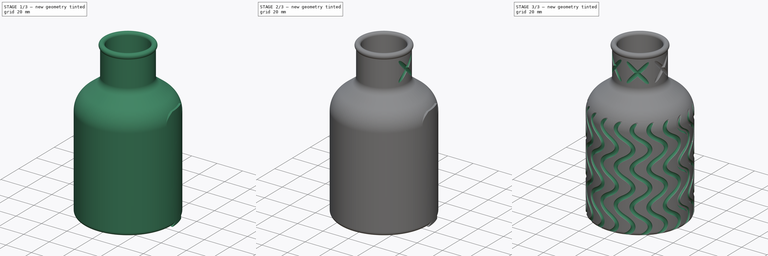
[diagram: build sequence overview — one tinted view per stage of 3, left to right]
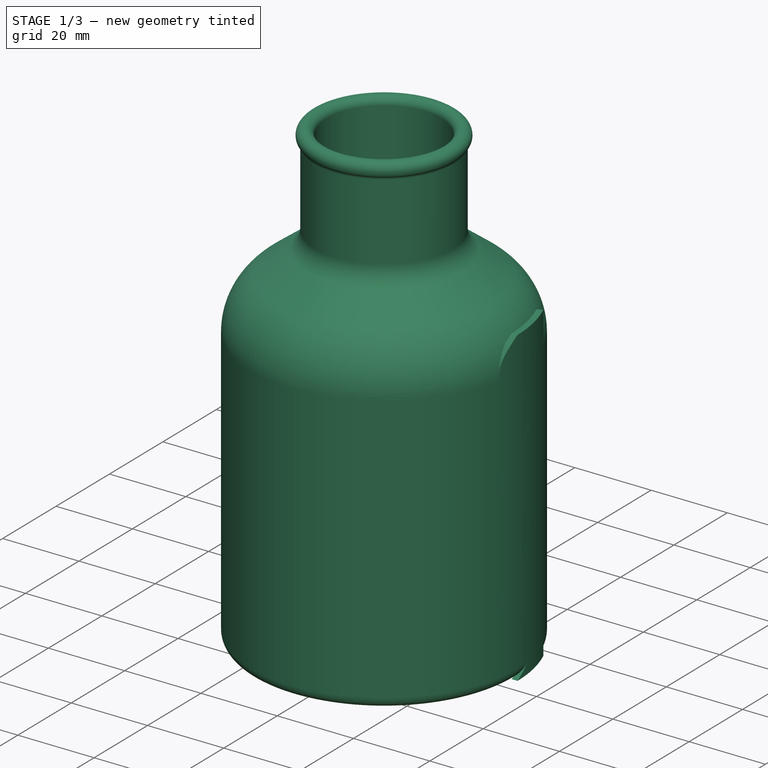
[diagram: stage 1 of 3 — iso view after this stage's code; geometry added in this stage tinted green]
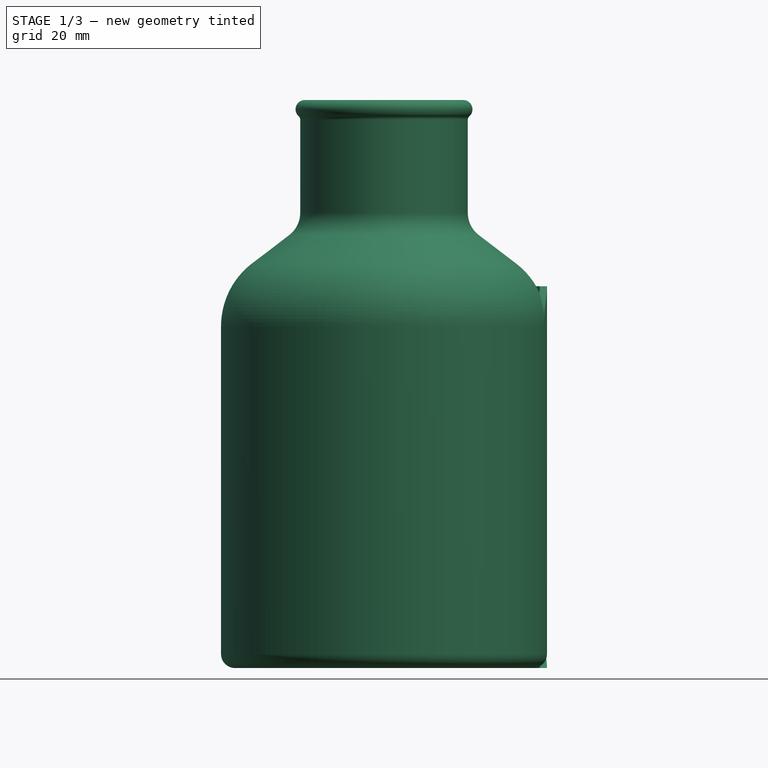
[diagram: stage 1 of 3 — front view after this stage's code; geometry added in this stage tinted green]
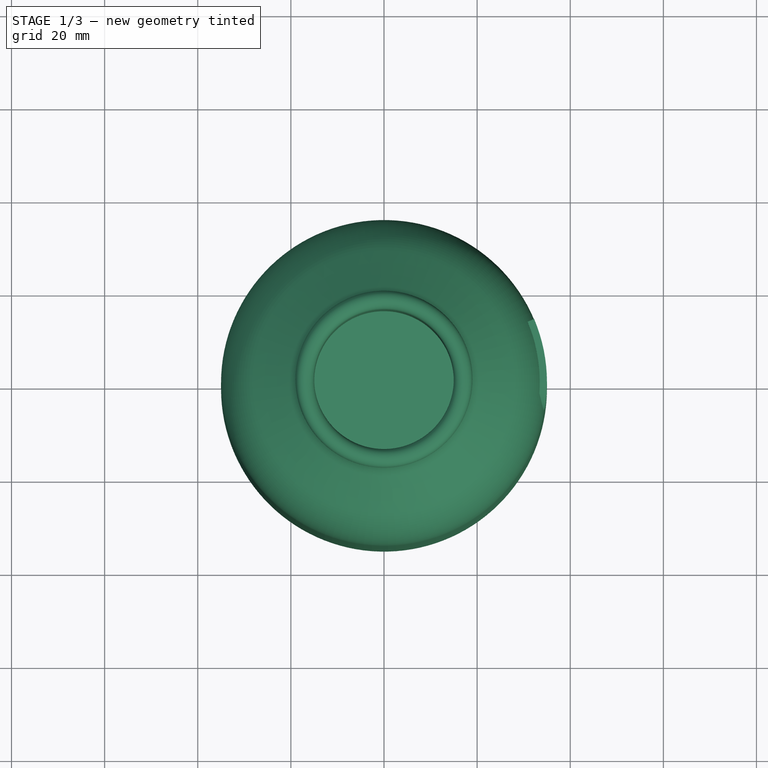
[diagram: stage 1 of 3 — top view after this stage's code; geometry added in this stage tinted green]
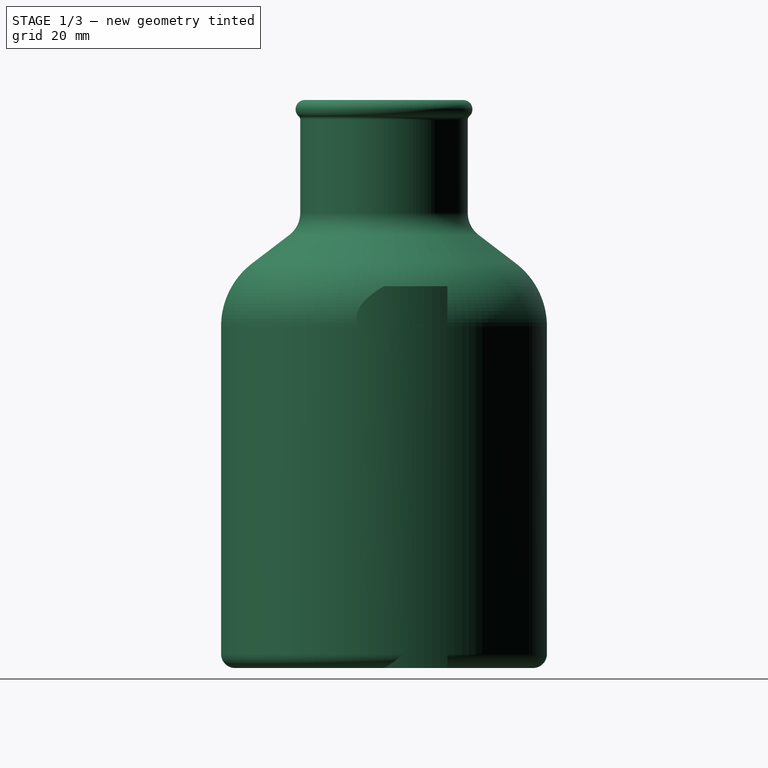
[diagram: stage 1 of 3 — right view after this stage's code; geometry added in this stage tinted green]
FCSTD DOCUMENT  (FreeCAD 1.0R39319 (Git))
Label: vase3
License: All rights reserved
LicenseURL: https://en.wikipedia.org/wiki/All_rights_reserved
objects: Sketcher::SketchObject×6, PartDesign::Pocket×3, PartDesign::PolarPattern×2, PartDesign::Body×2, PartDesign::Revolution×1, PartDesign::Pad×1, PartDesign::SubShapeBinder×1, PartDesign::SubtractivePipe×1
note: 37 computed .brp shape members not serialized (recipe doc carries the construction recipe); baked Part::Feature solids carry a one-line shape summary decoded from their .brp

FEATURE [Sketcher::SketchObject] Sketch001
  ArcFitTolerance = 1e-06
  AttachmentSupport = -> [XZ_Plane]
  FullyConstrained = true
  MakeInternals = false
  MapMode = 5
  Placement = pos=(0,0,0) rot=(1,0,0;1.5708rad)
  sketch-geometry (18):
    g0: LineSegment StartX=0 StartY=0 StartZ=0 EndX=32 EndY=0 EndZ=0
    g1: ArcOfCircle CenterX=32 CenterY=3 CenterZ=0 NormalX=0 NormalY=0 NormalZ=1 AngleXU=0 Radius=3 StartAngle=4.71239 EndAngle=6.28319
    g2: LineSegment StartX=35 StartY=3 StartZ=0 EndX=35 EndY=73.4123 EndZ=0
    g3: ArcOfCircle CenterX=18 CenterY=73.4123 CenterZ=0 NormalX=0 NormalY=0 NormalZ=1 AngleXU=0 Radius=17 StartAngle=0 EndAngle=0.91909
    g4: ArcOfCircle CenterX=24 CenterY=97.7639 CenterZ=0 NormalX=0 NormalY=0 NormalZ=1 AngleXU=0 Radius=6 StartAngle=3.14159 EndAngle=4.06068
    g5: LineSegment StartX=18 StartY=97.7639 StartZ=0 EndX=18 EndY=117.764 EndZ=0
    g6: ArcOfCircle CenterX=17 CenterY=120 CenterZ=0 NormalX=0 NormalY=0 NormalZ=1 AngleXU=0 Radius=2 StartAngle=5.44212 EndAngle=9.42478
    g7: LineSegment StartX=15 StartY=120 StartZ=0 EndX=15 EndY=97.7639 EndZ=0
    g8: ArcOfCircle CenterX=24 CenterY=97.7639 CenterZ=0 NormalX=0 NormalY=0 NormalZ=1 AngleXU=0 Radius=9 StartAngle=3.14159 EndAngle=4.06068
    g9: ArcOfCircle CenterX=18 CenterY=73.4123 CenterZ=0 NormalX=0 NormalY=0 NormalZ=1 AngleXU=0 Radius=14 StartAngle=2e-16 EndAngle=0.91909
    g10: LineSegment StartX=32 StartY=73.4123 StartZ=0 EndX=32 EndY=3 EndZ=0
    g11: LineSegment StartX=32 StartY=3 StartZ=0 EndX=0 EndY=3 EndZ=0
    g12: LineSegment StartX=0 StartY=3 StartZ=0 EndX=0 EndY=0 EndZ=0
    g13: LineSegment [constr] StartX=15 StartY=117.764 StartZ=0 EndX=18 EndY=117.764 EndZ=0
    g14: LineSegment StartX=18.5411 StartY=90.6085 StartZ=0 EndX=26.4916 EndY=84.543 EndZ=0
    g15: LineSegment StartX=20.3607 StartY=92.9936 StartZ=0 EndX=28.3112 EndY=86.9282 EndZ=0
    g16: ArcOfCircle CenterX=19 CenterY=117.764 CenterZ=0 NormalX=0 NormalY=0 NormalZ=1 AngleXU=0 Radius=1 StartAngle=2.30052 EndAngle=3.14159
    g17: GeomPoint X=15 Y=108.882 Z=0
  constraints (45):
    c: Horizontal(g0)
    c: Tangent(g0,g1) = -1.5708
    c: Vertical(g2)
    c: Tangent(g2,g3) = -1.5708
    c: Tangent(g7,g8) = -1.5708
    c: Coincident(g10,g1)
    c: Vertical(g10)
    c: Coincident(g10,g11)
    c: PointOnObject(g11,g-2)
    c: Horizontal(g11)
    c: Coincident(g11,g12)
    c: Coincident(g12,g0)
    c: Coincident(g0,g-1)
    c: Tangent(g1,g2) = -1.5708
    c: Tangent(g9,g10) = 1.5708
    c: Tangent(g4,g5) = 1.5708
    c: Tangent(g6,g7) = -1.5708
    c: Coincident(g3,g9)
    c: Coincident(g4,g8)
    c: Vertical(g5)
    c: Vertical(g7)
    c: PointOnObject(g13,g7)
    c: Equal(g12,g13)
    c: DistanceY(g12,g12) = 3
    c: Diameter(g6) = 4
    c: Radius(g4) = 6
    c: DistanceY(g5,g5) = 20
    c: DistanceX(g6) = 15
    c: DistanceY(g6) = 120
    c: Vertical(g3,g4)
    c: DistanceX(g1) = 35
    c: Tangent(g8,g14) = -1.5708
    c: Tangent(g4,g15) = -1.5708
    c: Tangent(g3,g15) = 1.5708
    c: Tangent(g9,g14) = 1.5708
    c: Distance(g15) = 10
    c: Coincident(g5,g13)
    c: Tangent(g16,g6) = 1.5708
    c: Tangent(g16,g5) = 1.5708
    c: Radius(g16) = 1
    c: DistanceX(g5) = 18
    c: Horizontal(g13)
    c: Symmetric(g7,g7,g17)
    c: DistanceY(g17) = 108.882
    c: Radius(g3) = 17
FEATURE [PartDesign::Revolution] Revolution
  Angle = 360
  Angle2 = 60
  Axis = (0,2e-16,1)
  Base = (0,0,0)
  Placement = pos=(0,0,0) rot=(1,0,0;1.5708rad)
  Profile = -> Sketch001
  ReferenceAxis = -> Sketch001 [V_Axis]
  Refine = true
  Reversed = true
  Suppressed = false
  Type = 0
FEATURE [Sketcher::SketchObject] Sketch
  ArcFitTolerance = 1e-06
  AttachmentOffset = pos=(0,0,40) rot=(0,0,1;0rad)
  AttachmentSupport = -> [YZ_Plane001]
  FullyConstrained = false
  MakeInternals = false
  MapMode = 5
  Placement = pos=(40,0,0) rot=(0.57735,0.57735,0.57735;2.0944rad)
  sketch-geometry (57):
    g0: Circle [constr] CenterX=0 CenterY=0 CenterZ=0 NormalX=0 NormalY=0 NormalZ=1 AngleXU=0 Radius=1
    g1: Circle [constr] CenterX=11.8357 CenterY=6.83333 CenterZ=0 NormalX=0 NormalY=0 NormalZ=1 AngleXU=0 Radius=1
    g2: Circle [constr] CenterX=0 CenterY=13.6667 CenterZ=0 NormalX=0 NormalY=0 NormalZ=1 AngleXU=0 Radius=1
    g3: BSplineCurve PolesCount=3 KnotsCount=2 Degree=2 IsPeriodic=0
    g4: GeomPoint [constr] X=0 Y=0 Z=0
    g5: GeomPoint [constr] X=0 Y=13.6667 Z=0
    g6: Circle [constr] CenterX=0 CenterY=13.6667 CenterZ=0 NormalX=0 NormalY=0 NormalZ=1 AngleXU=0 Radius=1
    g7: Circle [constr] CenterX=-11.8357 CenterY=20.5 CenterZ=0 NormalX=0 NormalY=0 NormalZ=1 AngleXU=0 Radius=1
    g8: Circle [constr] CenterX=0 CenterY=27.3333 CenterZ=0 NormalX=0 NormalY=0 NormalZ=1 AngleXU=0 Radius=1
    g9: BSplineCurve PolesCount=3 KnotsCount=2 Degree=2 IsPeriodic=0
    g10: GeomPoint [constr] X=0 Y=13.6667 Z=0
    g11: GeomPoint [constr] X=0 Y=27.3333 Z=0
    g12: Circle [constr] CenterX=0 CenterY=27.3333 CenterZ=0 NormalX=0 NormalY=0 NormalZ=1 AngleXU=0 Radius=1
    g13: Circle [constr] CenterX=11.8357 CenterY=34.1667 CenterZ=0 NormalX=0 NormalY=0 NormalZ=1 AngleXU=0 Radius=1
    g14: Circle [constr] CenterX=0 CenterY=41 CenterZ=0 NormalX=0 NormalY=0 NormalZ=1 AngleXU=0 Radius=1
    g15: BSplineCurve PolesCount=3 KnotsCount=2 Degree=2 IsPeriodic=0
    g16: GeomPoint [constr] X=0 Y=27.3333 Z=0
    g17: GeomPoint [constr] X=0 Y=41 Z=0
    g18: Circle [constr] CenterX=0 CenterY=41 CenterZ=0 NormalX=0 NormalY=0 NormalZ=1 AngleXU=0 Radius=1
    g19: Circle [constr] CenterX=-11.8357 CenterY=47.8333 CenterZ=0 NormalX=0 NormalY=0 NormalZ=1 AngleXU=0 Radius=1
    g20: Circle [constr] CenterX=0 CenterY=54.6667 CenterZ=0 NormalX=0 NormalY=0 NormalZ=1 AngleXU=0 Radius=1
    g21: BSplineCurve PolesCount=3 KnotsCount=2 Degree=2 IsPeriodic=0
    g22: GeomPoint [constr] X=0 Y=41 Z=0
    g23: GeomPoint [constr] X=0 Y=54.6667 Z=0
    g24: Circle [constr] CenterX=0 CenterY=54.6667 CenterZ=0 NormalX=0 NormalY=0 NormalZ=1 AngleXU=0 Radius=1
    g25: Circle [constr] CenterX=11.8357 CenterY=61.5 CenterZ=0 NormalX=0 NormalY=0 NormalZ=1 AngleXU=0 Radius=1
    g26: Circle [constr] CenterX=0 CenterY=68.3333 CenterZ=0 NormalX=0 NormalY=0 NormalZ=1 AngleXU=0 Radius=1
    g27: BSplineCurve PolesCount=3 KnotsCount=2 Degree=2 IsPeriodic=0
    g28: GeomPoint [constr] X=0 Y=54.6667 Z=0
    g29: GeomPoint [constr] X=0 Y=68.3333 Z=0
    g30: Circle [constr] CenterX=0 CenterY=68.3333 CenterZ=0 NormalX=0 NormalY=0 NormalZ=1 AngleXU=0 Radius=1
    g31: Circle [constr] CenterX=-11.8357 CenterY=75.1667 CenterZ=0 NormalX=0 NormalY=0 NormalZ=1 AngleXU=0 Radius=1
    g32: Circle [constr] CenterX=0 CenterY=82 CenterZ=0 NormalX=0 NormalY=0 NormalZ=1 AngleXU=0 Radius=1
    g33: BSplineCurve PolesCount=3 KnotsCount=2 Degree=2 IsPeriodic=0
    g34: GeomPoint [constr] X=0 Y=68.3333 Z=0
    g35: GeomPoint [constr] X=0 Y=82 Z=0
    g36: LineSegment [constr] StartX=0 StartY=82 StartZ=0 EndX=-11.8357 EndY=75.1667 EndZ=0
    g37: LineSegment [constr] StartX=-11.8357 StartY=75.1667 StartZ=0 EndX=0 EndY=68.3333 EndZ=0
    g38: LineSegment [constr] StartX=0 StartY=68.3333 StartZ=0 EndX=11.8357 EndY=61.5 EndZ=0
    g39: LineSegment [constr] StartX=11.8357 StartY=61.5 StartZ=0 EndX=0 EndY=54.6667 EndZ=0
    g40: LineSegment [constr] StartX=0 StartY=54.6667 StartZ=0 EndX=-11.8357 EndY=47.8333 EndZ=0
    g41: LineSegment [constr] StartX=-11.8357 StartY=47.8333 StartZ=0 EndX=0 EndY=41 EndZ=0
    g42: LineSegment [constr] StartX=0 StartY=41 StartZ=0 EndX=11.8357 EndY=34.1667 EndZ=0
    g43: LineSegment [constr] StartX=11.8357 StartY=34.1667 StartZ=0 EndX=0 EndY=27.3333 EndZ=0
    g44: LineSegment [constr] StartX=0 StartY=27.3333 StartZ=0 EndX=-11.8357 EndY=20.5 EndZ=0
    g45: LineSegment [constr] StartX=-11.8357 StartY=20.5 StartZ=0 EndX=0 EndY=13.6667 EndZ=0
    g46: LineSegment [constr] StartX=0 StartY=13.6667 StartZ=0 EndX=11.8357 EndY=6.83333 EndZ=0
    g47: LineSegment [constr] StartX=11.8357 StartY=6.83333 StartZ=0 EndX=0 EndY=0 EndZ=0
    g48: LineSegment [constr] StartX=0 StartY=0 StartZ=0 EndX=0 EndY=13.6667 EndZ=0
    g49: LineSegment [constr] StartX=0 StartY=13.6667 StartZ=0 EndX=0 EndY=27.3333 EndZ=0
    g50: LineSegment [constr] StartX=0 StartY=27.3333 StartZ=0 EndX=0 EndY=41 EndZ=0
    g51: LineSegment [constr] StartX=0 StartY=41 StartZ=0 EndX=0 EndY=54.6667 EndZ=0
    g52: LineSegment [constr] StartX=0 StartY=54.6667 StartZ=0 EndX=0 EndY=68.3333 EndZ=0
    g53: LineSegment [constr] StartX=0 StartY=68.3333 StartZ=0 EndX=0 EndY=82 EndZ=0
    g54: LineSegment StartX=0 StartY=82 StartZ=0 EndX=-15.6997 EndY=82 EndZ=0
    g55: LineSegment StartX=-15.6997 StartY=82 StartZ=0 EndX=-15.6997 EndY=0 EndZ=0
    g56: LineSegment StartX=-15.6997 StartY=0 StartZ=0 EndX=0 EndY=0 EndZ=0
  constraints (121):
    c: Weight(g0) = 1
    c: Equal(g0,g2)
    c: InternalAlignment(g0,g3)
    c: InternalAlignment(g1,g3)
    c: InternalAlignment(g2,g3)
    c: InternalAlignment(g4,g3)
    c: InternalAlignment(g5,g3)
    c: Coincident(g0,g-1)
    c: PointOnObject(g2,g-2)
    c: Equal(g6,g7)
    c: Equal(g6,g8)
    c: InternalAlignment(g6,g9)
    c: InternalAlignment(g7,g9)
    c: InternalAlignment(g8,g9)
    c: InternalAlignment(g10,g9)
    c: InternalAlignment(g11,g9)
    c: Coincident(g6,g3)
    c: PointOnObject(g8,g-2)
    c: Equal(g12,g13)
    c: Equal(g12,g14)
    c: InternalAlignment(g12,g15)
    c: InternalAlignment(g13,g15)
    c: InternalAlignment(g14,g15)
    c: InternalAlignment(g16,g15)
    c: InternalAlignment(g17,g15)
    c: Coincident(g12,g9)
    c: PointOnObject(g14,g-2)
    c: Equal(g18,g19)
    c: Equal(g18,g20)
    c: InternalAlignment(g18,g21)
    c: InternalAlignment(g19,g21)
    c: InternalAlignment(g20,g21)
    c: InternalAlignment(g22,g21)
    c: InternalAlignment(g23,g21)
    c: Coincident(g18,g15)
    c: PointOnObject(g20,g-2)
    c: Equal(g24,g25)
    c: Equal(g24,g26)
    c: InternalAlignment(g24,g27)
    c: InternalAlignment(g25,g27)
    c: InternalAlignment(g26,g27)
    c: InternalAlignment(g28,g27)
    c: InternalAlignment(g29,g27)
    c: Coincident(g24,g21)
    c: PointOnObject(g26,g-2)
    c: Equal(g30,g31)
    c: InternalAlignment(g30,g33)
    c: InternalAlignment(g31,g33)
    c: InternalAlignment(g32,g33)
    c: InternalAlignment(g34,g33)
    c: InternalAlignment(g35,g33)
    c: Coincident(g30,g27)
    c: PointOnObject(g32,g-2)
    c: Coincident(g36,g33)
    c: Coincident(g36,g31)
    c: Coincident(g36,g37)
    c: Coincident(g37,g33)
    c: Coincident(g37,g38)
    c: Coincident(g38,g25)
    c: Coincident(g38,g39)
    c: Coincident(g39,g27)
    c: Coincident(g39,g40)
    c: Coincident(g40,g19)
    c: Coincident(g40,g41)
    c: Coincident(g42,g13)
    c: Coincident(g42,g43)
    c: Coincident(g44,g7)
    c: Coincident(g44,g45)
    c: Coincident(g46,g1)
    c: Coincident(g46,g47)
    c: Coincident(g47,g3)
    c: Equal(g46,g47)
    c: Equal(g46,g45)
    c: Coincident(g45,g9)
    c: Equal(g44,g45)
    c: Equal(g44,g42)
    c: Equal(g42,g43)
    c: Equal(g42,g41)
    c: Coincident(g21,g41)
    c: Equal(g26,g30)
    c: Equal(g30,g32)
    c: Equal(g24,g20)
    c: Equal(g18,g14)
    c: Equal(g19,g7)
    c: Equal(g6,g2)
    c: Equal(g2,g1)
    c: Coincident(g43,g15)
    c: Equal(g36,g37)
    c: Equal(g38,g39)
    c: Coincident(g14,g42)
    c: Coincident(g8,g44)
    c: Equal(g40,g41)
    c: Coincident(g46,g3)
    c: Coincident(g48,g0)
    c: Coincident(g48,g3)
    c: Coincident(g48,g49)
    c: Coincident(g49,g8)
    c: Coincident(g49,g50)
    c: Coincident(g50,g14)
    c: Coincident(g50,g51)
    c: Coincident(g51,g21)
    c: Coincident(g51,g52)
    c: Coincident(g52,g27)
    c: Coincident(g52,g53)
    c: Coincident(g53,g33)
    c: Equal(g53,g52)
    c: Equal(g52,g51)
    c: Equal(g51,g50)
    c: Equal(g50,g49)
    c: Equal(g49,g48)
    c: Equal(g37,g38)
    c: Equal(g39,g40)
    c: DistanceY(g33) = 82
    c: Angle(g-1,g47) = 0.523599
    c: Coincident(g54,g33)
    c: Horizontal(g54)
    c: Coincident(g54,g55)
    c: PointOnObject(g55,g-1)
    c: Vertical(g55)
    c: Coincident(g55,g56)
    c: Coincident(g56,g0)
FEATURE [Sketcher::SketchObject] Sketch004
  ArcFitTolerance = 1e-06
  AttachmentSupport = -> [XY_Plane001]
  FullyConstrained = false
  MakeInternals = false
  MapMode = 5
  sketch-geometry (4):
    g0: ArcOfCircle CenterX=0 CenterY=0 CenterZ=0 NormalX=0 NormalY=0 NormalZ=1 AngleXU=0 Radius=35 StartAngle=5.88398 EndAngle=6.68239
    g1: ArcOfCircle CenterX=0 CenterY=0 CenterZ=0 NormalX=0 NormalY=0 NormalZ=1 AngleXU=0 Radius=33.4597 StartAngle=5.88398 EndAngle=6.68239
    g2: LineSegment StartX=32.2479 StartY=13.6041 StartZ=0 EndX=30.8287 EndY=13.0054 EndZ=0
    g3: LineSegment StartX=32.2479 StartY=-13.6041 StartZ=0 EndX=30.8287 EndY=-13.0054 EndZ=0
  constraints (9):
    c: Coincident(g0,g-1)
    c: Coincident(g1,g0)
    c: Coincident(g0,g2)
    c: Coincident(g2,g1)
    c: Coincident(g0,g3)
    c: Coincident(g3,g1)
    c: PointOnObject(g0,g3)
    c: PointOnObject(g0,g2)
    c: Radius(g0) = 35
FEATURE [PartDesign::Pad] Pad
  Direction = (0,0,1)
  Length = 82
  Length2 = 10
  Profile = -> Sketch004
  ReferenceAxis = -> Sketch004 [N_Axis]
  Refine = true
  Suppressed = false
  Type = 0
FEATURE [PartDesign::Pocket] Pocket002
  BaseFeature = -> Pad
  Direction = (-1,0,0)
  Length = 5
  Length2 = 5
  Profile = -> Sketch
  ReferenceAxis = -> Sketch [N_Axis]
  Refine = true
  Suppressed = false
  Type = 1
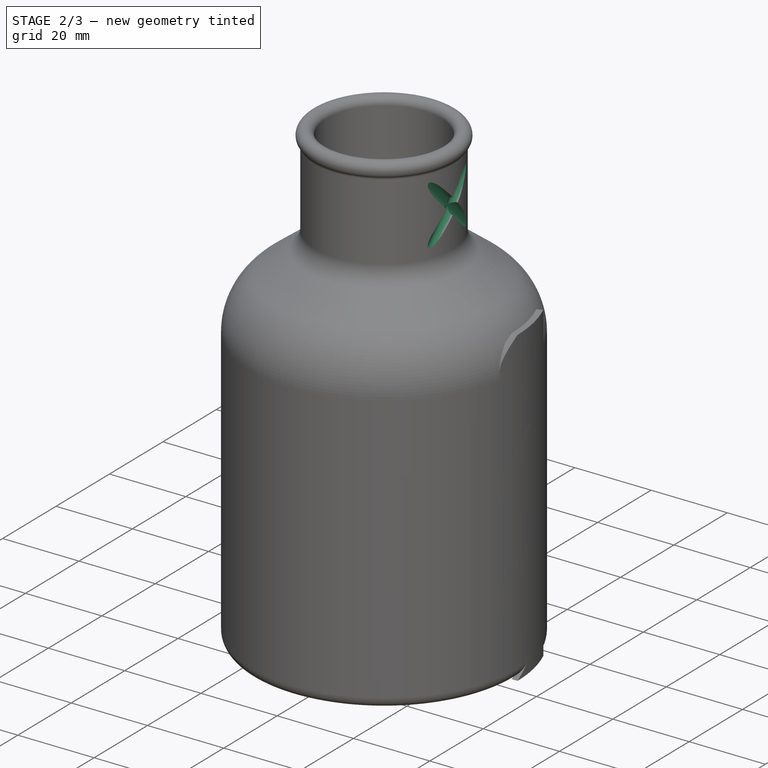
[diagram: stage 2 of 3 — iso view after this stage's code; geometry added in this stage tinted green]
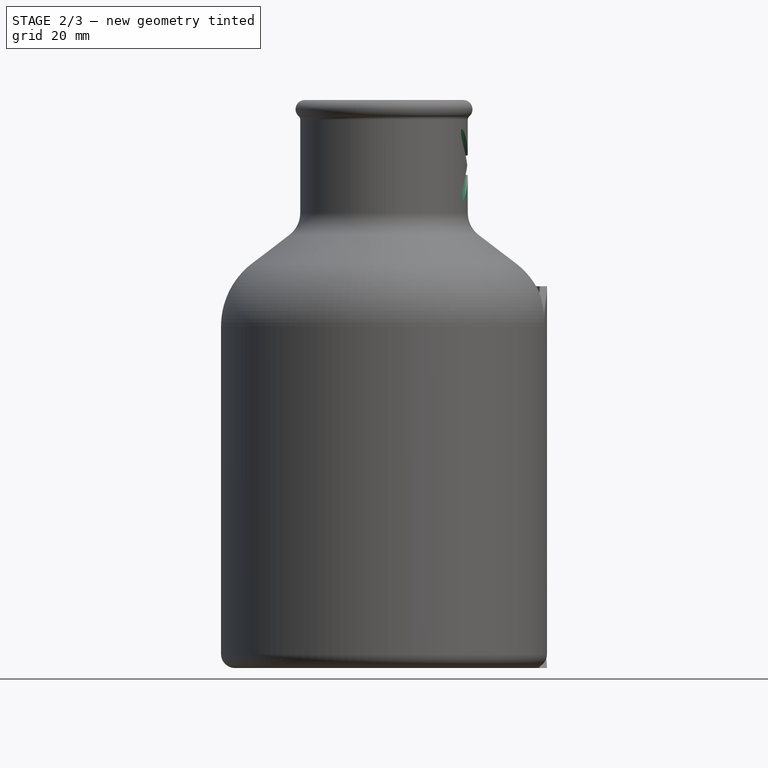
[diagram: stage 2 of 3 — front view after this stage's code; geometry added in this stage tinted green]
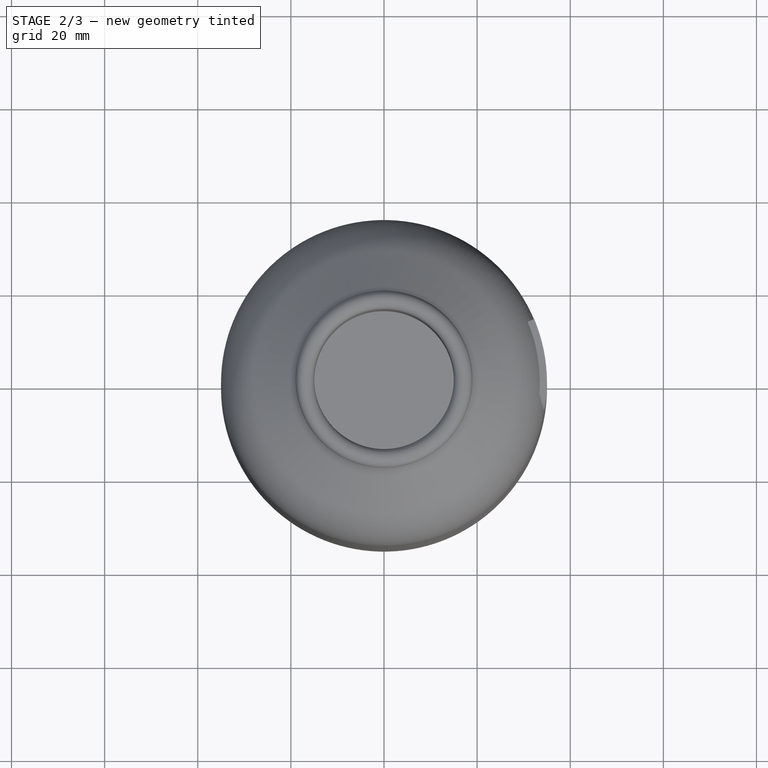
[diagram: stage 2 of 3 — top view after this stage's code; geometry added in this stage tinted green]
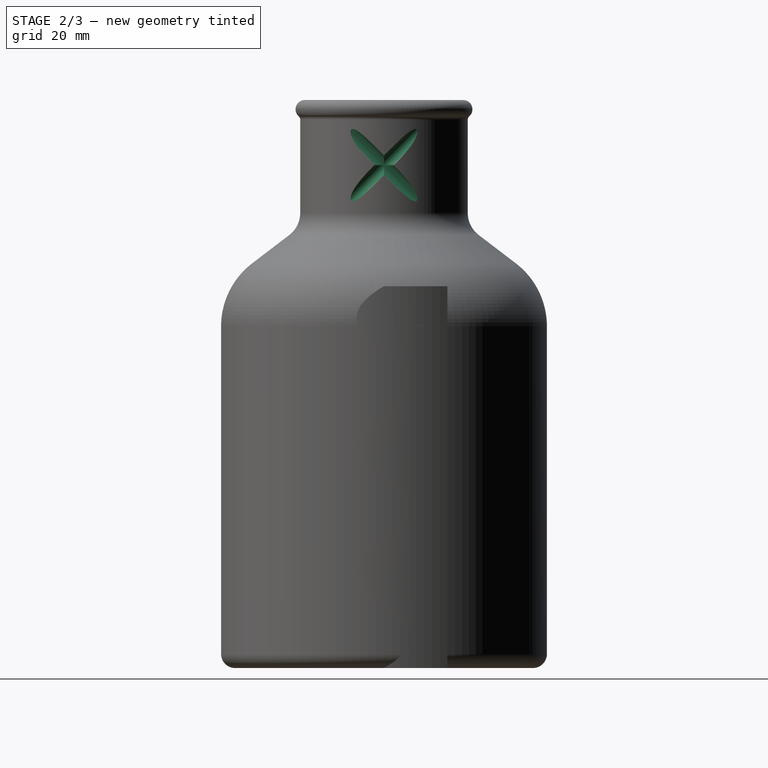
[diagram: stage 2 of 3 — right view after this stage's code; geometry added in this stage tinted green]
FEATURE [Sketcher::SketchObject] Sketch002
  ArcFitTolerance = 1e-06
  AttachmentOffset = pos=(18,0,108) rot=(1,0,0;-0.785398rad)
  AttachmentSupport = -> [XY_Plane]
  FullyConstrained = true
  MakeInternals = false
  MapMode = 5
  Placement = pos=(18,0,108) rot=(1,0,0;5.49779rad)
  sketch-geometry (1):
    g0: Circle CenterX=0 CenterY=0 CenterZ=0 NormalX=0 NormalY=0 NormalZ=1 AngleXU=0 Radius=1.5
  constraints (2):
    c: Coincident(g0,g-1)
    c: Radius(g0) = 1.5
FEATURE [PartDesign::Pocket] Pocket
  BaseFeature = -> Revolution
  Direction = (0,-0.707107,-0.707107)
  Length = 25
  Length2 = 5
  Placement = pos=(0,0,0) rot=(1,0,0;1.5708rad)
  Profile = -> Sketch002
  ReferenceAxis = -> Sketch002 [N_Axis]
  Refine = true
  Suppressed = false
  Type = 0
FEATURE [Sketcher::SketchObject] Sketch003
  ArcFitTolerance = 1e-06
  AttachmentOffset = pos=(18,0,108) rot=(1,0,0;0.785398rad)
  AttachmentSupport = -> [XY_Plane]
  FullyConstrained = true
  MakeInternals = false
  MapMode = 5
  Placement = pos=(18,0,108) rot=(1,0,0;0.785398rad)
  sketch-geometry (1):
    g0: Circle CenterX=0 CenterY=0 CenterZ=0 NormalX=0 NormalY=0 NormalZ=1 AngleXU=0 Radius=1.5
  constraints (2):
    c: Coincident(g0,g-1)
    c: Radius(g0) = 1.5
FEATURE [PartDesign::Pocket] Pocket001
  BaseFeature = -> Pocket
  Direction = (0,0.707107,-0.707107)
  Length = 25
  Length2 = 5
  Placement = pos=(0,0,0) rot=(1,0,0;1.5708rad)
  Profile = -> Sketch003
  ReferenceAxis = -> Sketch003 [N_Axis]
  Refine = true
  Suppressed = false
  Type = 0
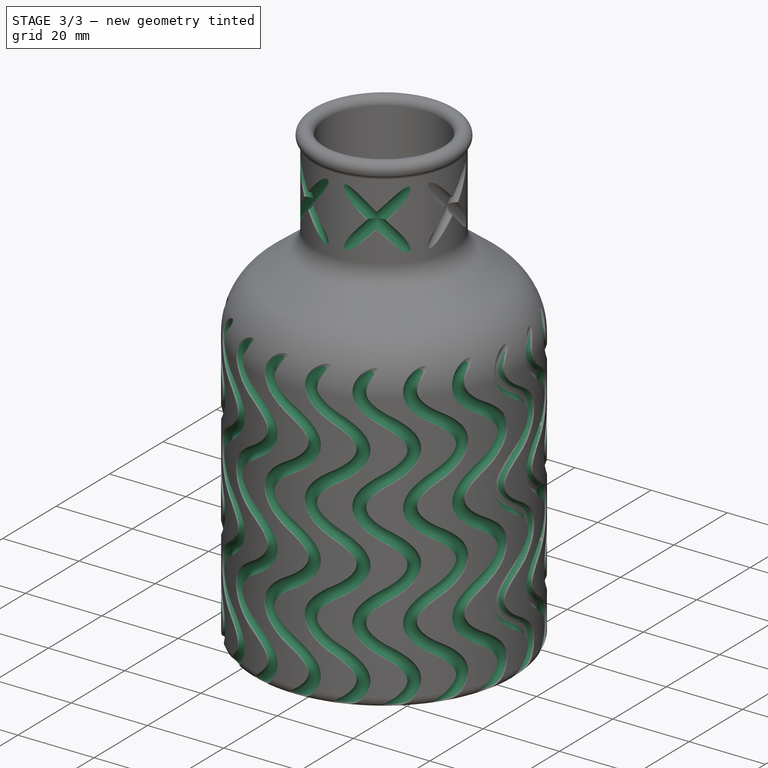
[diagram: stage 3 of 3 — iso view after this stage's code; geometry added in this stage tinted green]
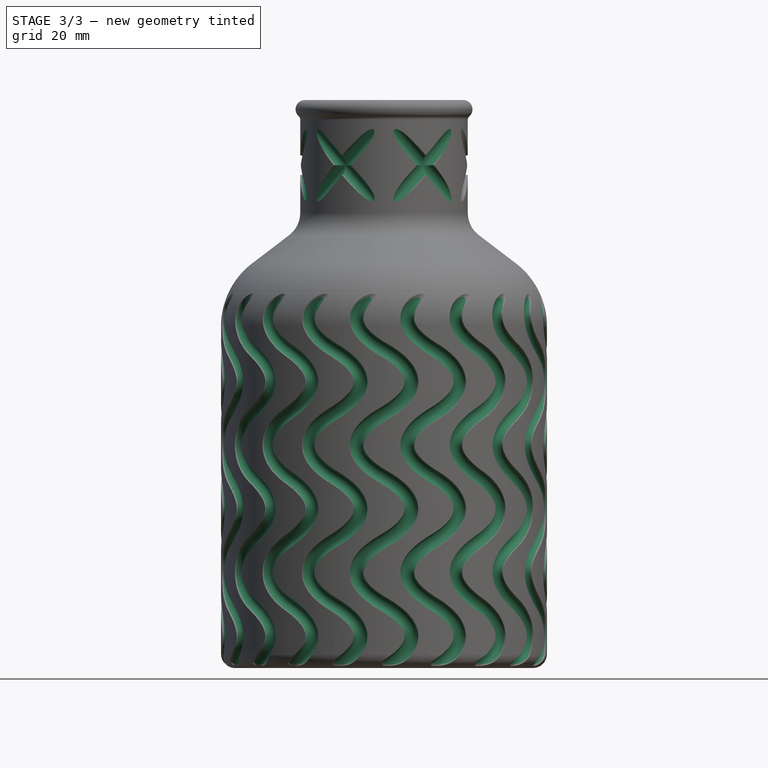
[diagram: stage 3 of 3 — front view after this stage's code; geometry added in this stage tinted green]
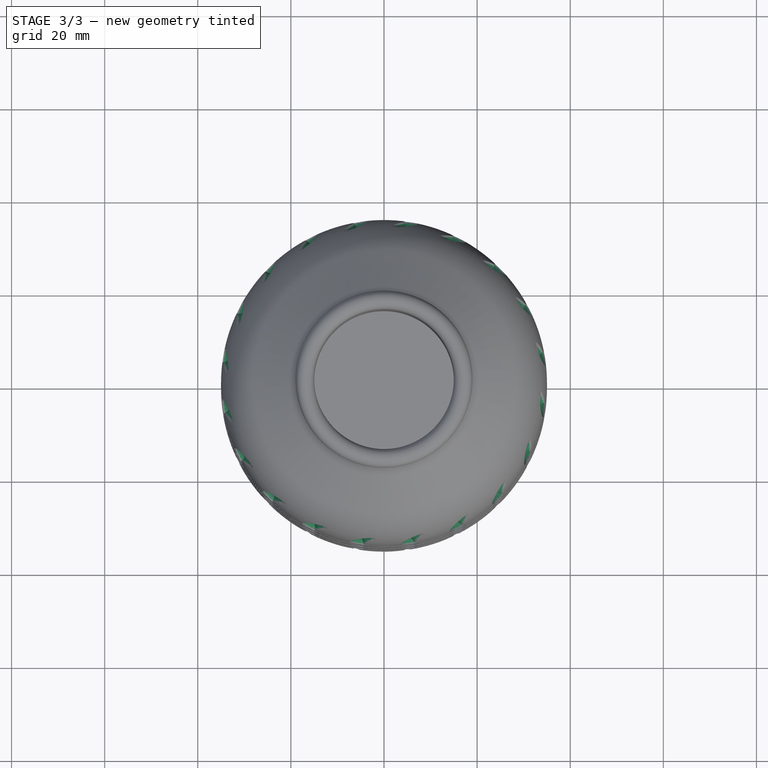
[diagram: stage 3 of 3 — top view after this stage's code; geometry added in this stage tinted green]
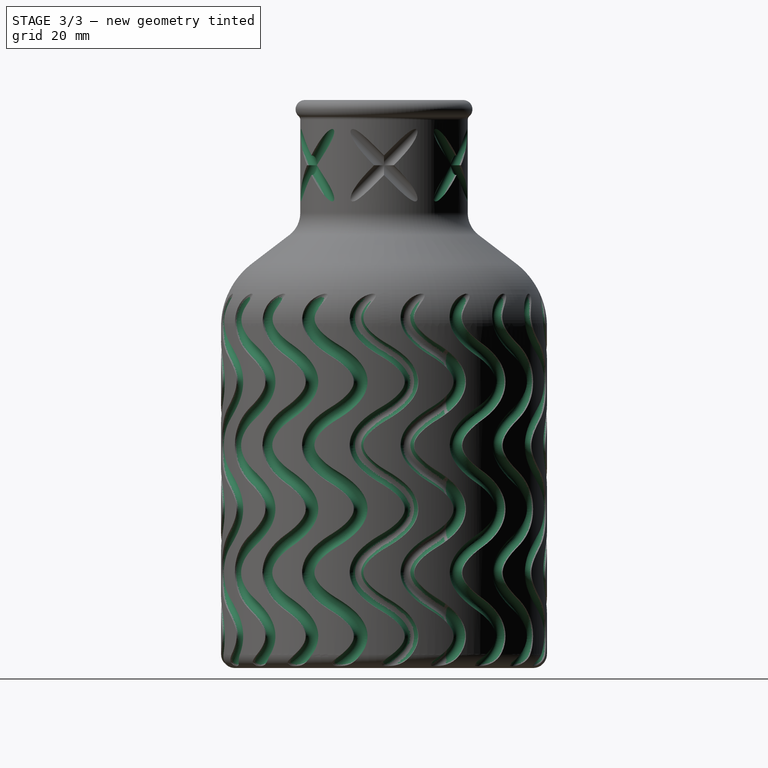
[diagram: stage 3 of 3 — right view after this stage's code; geometry added in this stage tinted green]
FEATURE [PartDesign::PolarPattern] PolarPattern
  Angle = 360
  Axis = -> Z_Axis
  BaseFeature = -> Pocket001
  Mode = 0
  Occurrences = 6
  Offset = 120
  Originals = -> [Pocket,Pocket001]
  Placement = pos=(0,0,0) rot=(1,0,0;1.5708rad)
  Refine = true
  Suppressed = false
  TransformMode = 0
FEATURE [PartDesign::Body] Body001
  AllowCompound = false
  Group = -> [Sketch004,Pad,Sketch,Pocket002]
  Origin = -> Origin001
  Tip = -> Pocket002
FEATURE [PartDesign::SubShapeBinder] Binder
  BindCopyOnChange = 0
  BindMode = 0
  ClaimChildren = false
  Fuse = false
  MakeFace = true
  OffsetFill = false
  OffsetIntersection = false
  OffsetJoinType = 0
  OffsetOpenResult = false
  PartialLoad = false
  Refine = true
  Relative = true
  Support = -> [Body001[Pocket002.Edge9,Pocket002.Edge8,Pocket002.Edge7,Pocket002.Edge6,Pocket002.Edge5,Pocket002.Edge4]]
  _Version = 2
FEATURE [Sketcher::SketchObject] Sketch005
  ArcFitTolerance = 1e-06
  AttachmentOffset = pos=(0,0,0) rot=(1,0,0;-1.0472rad)
  AttachmentSupport = -> [XY_Plane]
  FullyConstrained = true
  MakeInternals = false
  MapMode = 5
  Placement = pos=(0,0,0) rot=(1,0,0;5.23599rad)
  sketch-geometry (1):
    g0: Circle CenterX=35 CenterY=0 CenterZ=0 NormalX=0 NormalY=0 NormalZ=1 AngleXU=0 Radius=1.5
  constraints (3):
    c: PointOnObject(g0,g-1)
    c: DistanceX(g0) = 35
    c: Radius(g0) = 1.5
FEATURE [PartDesign::SubtractivePipe] SubtractivePipe
  AuxilleryCurvelinear = true
  AuxillerySpineTangent = false
  BaseFeature = -> PolarPattern
  Binormal = (0,0,0)
  Mode = 0
  Placement = pos=(0,0,0) rot=(1,0,0;1.5708rad)
  Profile = -> Sketch005
  Refine = true
  Spine = -> Binder
  SpineTangent = false
  Suppressed = false
  Transformation = 0
  Transition = 0
FEATURE [PartDesign::PolarPattern] PolarPattern001
  Angle = 360
  Axis = -> Z_Axis
  BaseFeature = -> SubtractivePipe
  Mode = 0
  Occurrences = 20
  Offset = 120
  Originals = -> [SubtractivePipe]
  Placement = pos=(0,0,0) rot=(1,0,0;1.5708rad)
  Refine = true
  Suppressed = false
  TransformMode = 0
FEATURE [PartDesign::Body] Body
  AllowCompound = true
  Group = -> [Sketch001,Revolution,Sketch002,Pocket,Sketch003,Pocket001,PolarPattern,Binder,Sketch005,SubtractivePipe,PolarPattern001]
  Origin = -> Origin
  Tip = -> PolarPattern001
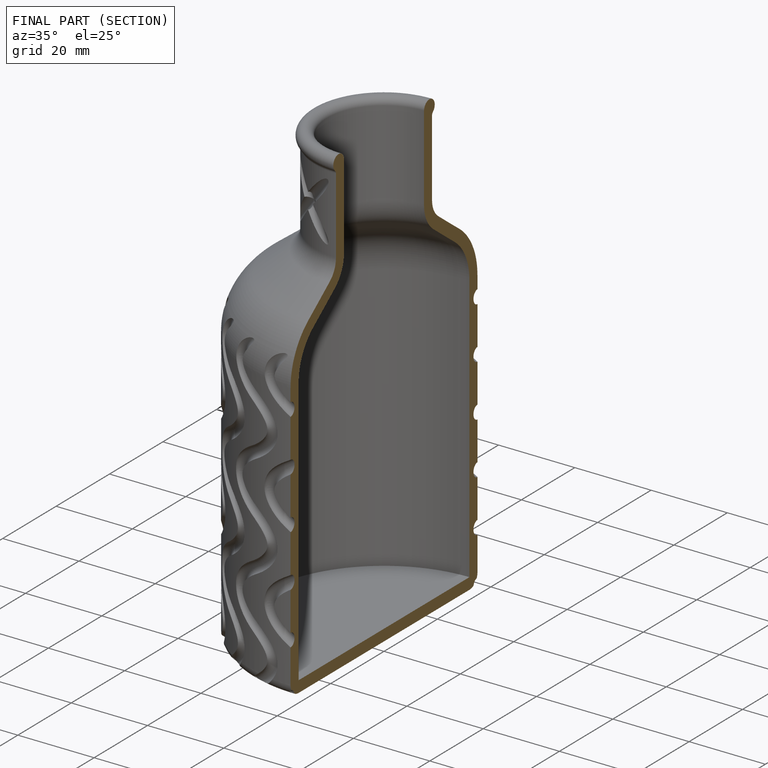
[diagram: finished part — half-section view (interior)]
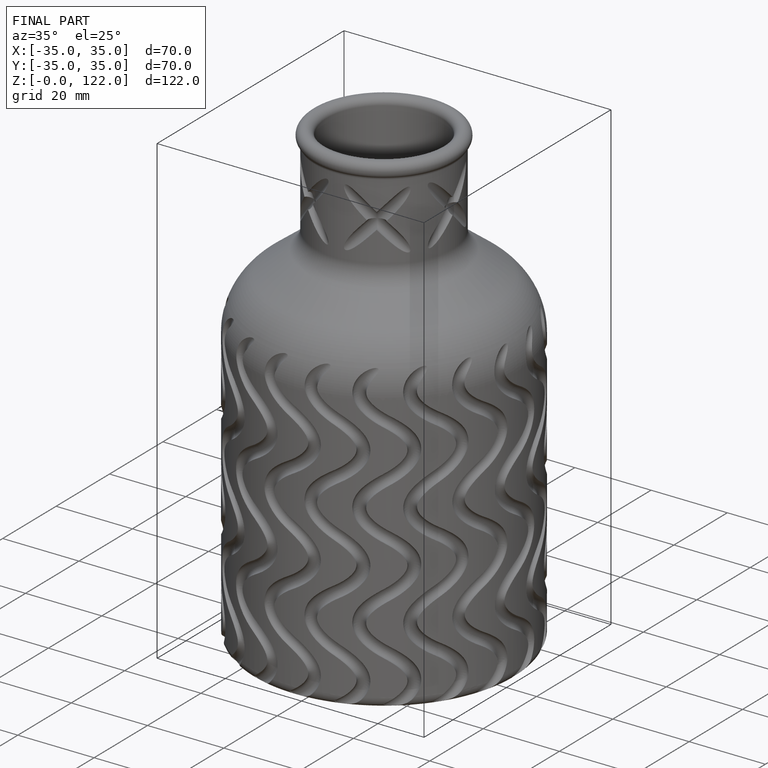
[diagram: finished part — iso view with bounding-box wireframe]
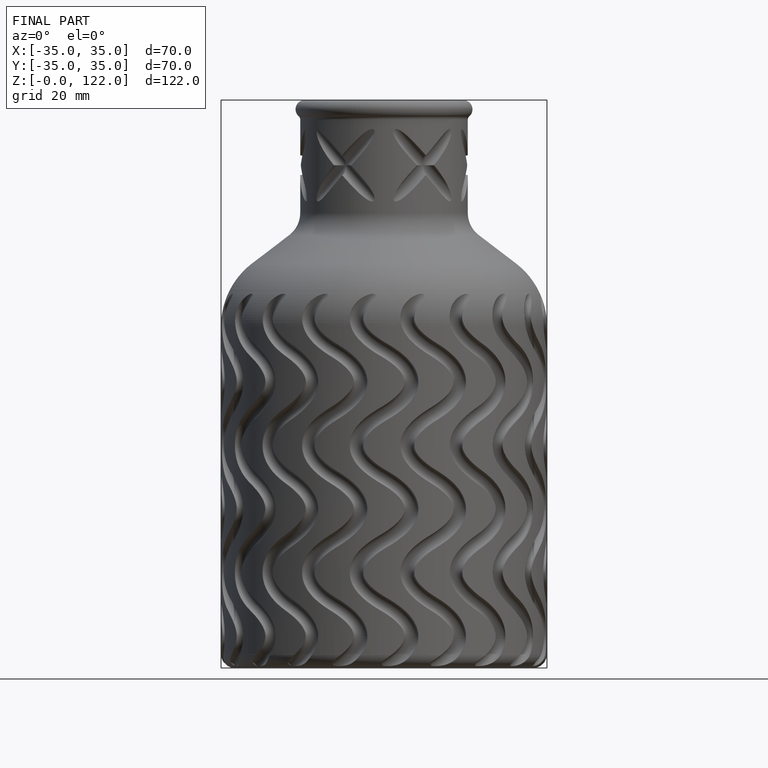
[diagram: finished part — front view with bounding-box wireframe]
